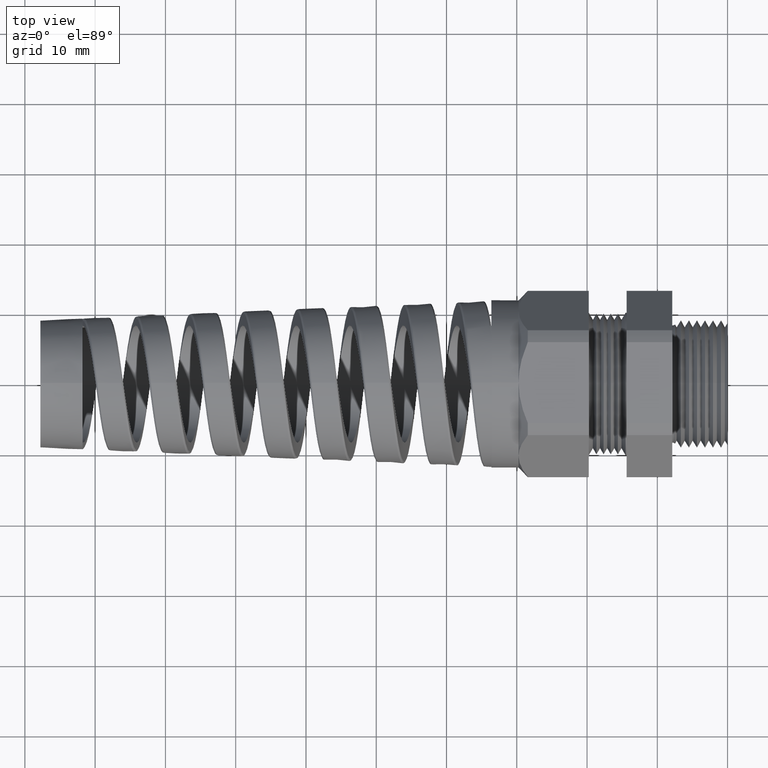
[diagram: clean part render]
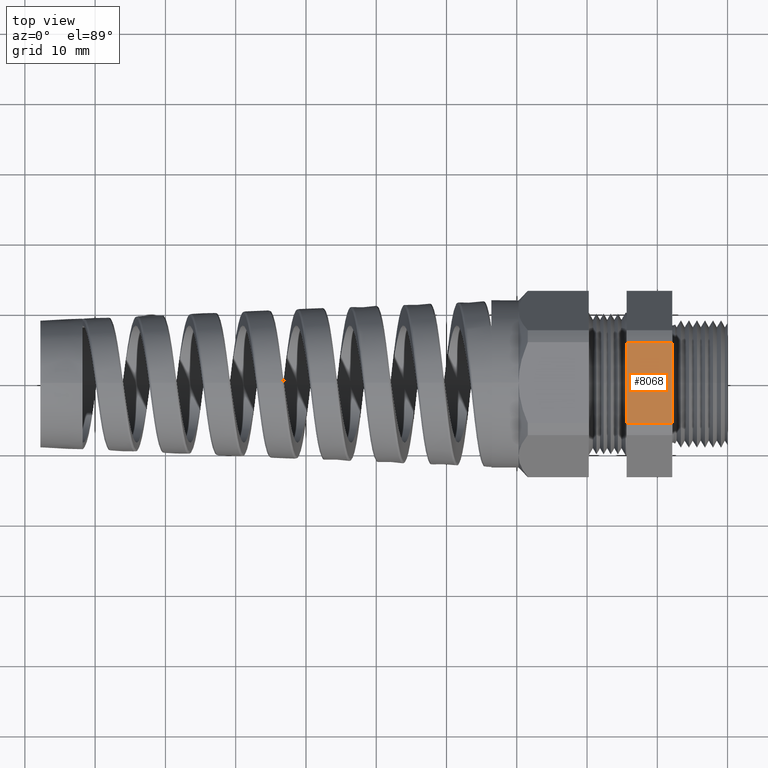
[diagram: same view with one face highlighted and labeled with its STEP entity id]
A machine part, top view. The second image highlights one B-rep face of the part: STEP entity #8068.
In plain terms, the highlighted planar face has unit normal (0, 0, 1).
Its self-contained STEP definition (entity closure, byte-faithful):
#2453 = CARTESIAN_POINT ( 'NONE',  ( -0.3100000000000000000, -0.2264307620443835600, 0.4699999999999997500 ) ) ;
#2454 = DIRECTION ( 'NONE',  ( 0.0000000000000000000, -1.000000000000000000, 0.0000000000000000000 ) ) ;
#2455 = VECTOR ( 'NONE', #2454, 39.37007874015748100 ) ;
#2456 = CARTESIAN_POINT ( 'NONE',  ( -0.3100000000000000000, 0.9399999999999999500, 0.4699999999999997500 ) ) ;
#2457 = LINE ( 'NONE', #2456, #2455 ) ;
#2458 = CARTESIAN_POINT ( 'NONE',  ( -0.3100000000000000000, 0.2264307620443835600, 0.4699999999999997500 ) ) ;
#2470 = DIRECTION ( 'NONE',  ( 1.000000000000000000, 0.0000000000000000000, 0.0000000000000000000 ) ) ;
#2471 = DIRECTION ( 'NONE',  ( 0.0000000000000000000, 0.0000000000000000000, 1.000000000000000000 ) ) ;
#2472 = CARTESIAN_POINT ( 'NONE',  ( 0.0000000000000000000, -0.2264307620443835600, 0.4699999999999997500 ) ) ;
#2473 = AXIS2_PLACEMENT_3D ( 'NONE', #2472, #2471, #2470 ) ;
#2474 = PLANE ( 'NONE',  #2473 ) ;
#2475 = FACE_OUTER_BOUND ( 'NONE', #8069, .T. ) ;
#2481 = CARTESIAN_POINT ( 'NONE',  ( -0.5659055118110235500, -0.2264307620443835600, 0.4699999999999997500 ) ) ;
#2482 = DIRECTION ( 'NONE',  ( -1.000000000000000000, 0.0000000000000000000, 0.0000000000000000000 ) ) ;
#2483 = VECTOR ( 'NONE', #2482, 39.37007874015748100 ) ;
#2484 = CARTESIAN_POINT ( 'NONE',  ( 0.0000000000000000000, -0.2264307620443835600, 0.4699999999999997500 ) ) ;
#2485 = LINE ( 'NONE', #2484, #2483 ) ;
#2602 = DIRECTION ( 'NONE',  ( 0.0000000000000000000, 1.000000000000000000, 0.0000000000000000000 ) ) ;
#2603 = VECTOR ( 'NONE', #2602, 39.37007874015748100 ) ;
#2604 = CARTESIAN_POINT ( 'NONE',  ( -0.5659055118110235500, 0.9399999999999999500, 0.4699999999999997500 ) ) ;
#2605 = LINE ( 'NONE', #2604, #2603 ) ;
#2606 = CARTESIAN_POINT ( 'NONE',  ( -0.5659055118110235500, 0.2264307620443835600, 0.4699999999999997500 ) ) ;
#2607 = DIRECTION ( 'NONE',  ( -1.000000000000000000, 0.0000000000000000000, 0.0000000000000000000 ) ) ;
#2608 = VECTOR ( 'NONE', #2607, 39.37007874015748100 ) ;
#2609 = CARTESIAN_POINT ( 'NONE',  ( 0.0000000000000000000, 0.2264307620443835600, 0.4699999999999997500 ) ) ;
#2614 = LINE ( 'NONE', #2609, #2608 ) ;
#8047 = VERTEX_POINT ( 'NONE', #2458 ) ;
#8049 = EDGE_CURVE ( 'NONE', #8047, #8050, #2457, .T. ) ;
#8050 = VERTEX_POINT ( 'NONE', #2453 ) ;
#8064 = EDGE_CURVE ( 'NONE', #8050, #8065, #2485, .T. ) ;
#8065 = VERTEX_POINT ( 'NONE', #2481 ) ;
#8068 = ADVANCED_FACE ( 'NONE', ( #2475 ), #2474, .T. ) ;
#8069 = EDGE_LOOP ( 'NONE', ( #8070, #8071, #8123, #8126 ) ) ;
#8070 = ORIENTED_EDGE ( 'NONE', *, *, #8064, .F. ) ;
#8071 = ORIENTED_EDGE ( 'NONE', *, *, #8049, .F. ) ;
#8123 = ORIENTED_EDGE ( 'NONE', *, *, #8124, .T. ) ;
#8124 = EDGE_CURVE ( 'NONE', #8047, #8125, #2614, .T. ) ;
#8125 = VERTEX_POINT ( 'NONE', #2606 ) ;
#8126 = ORIENTED_EDGE ( 'NONE', *, *, #8127, .F. ) ;
#8127 = EDGE_CURVE ( 'NONE', #8065, #8125, #2605, .T. ) ;